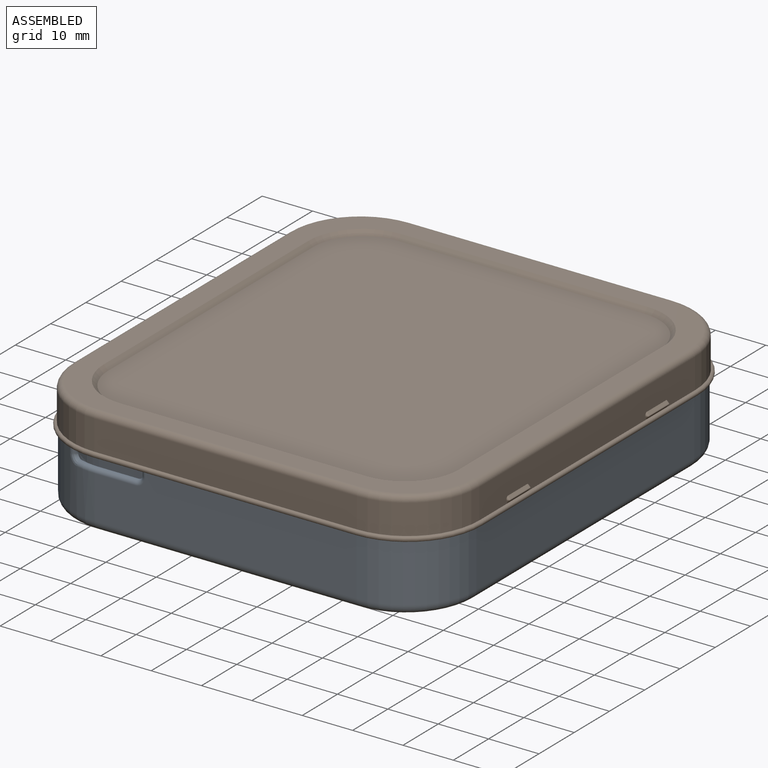
[diagram: assembled view]
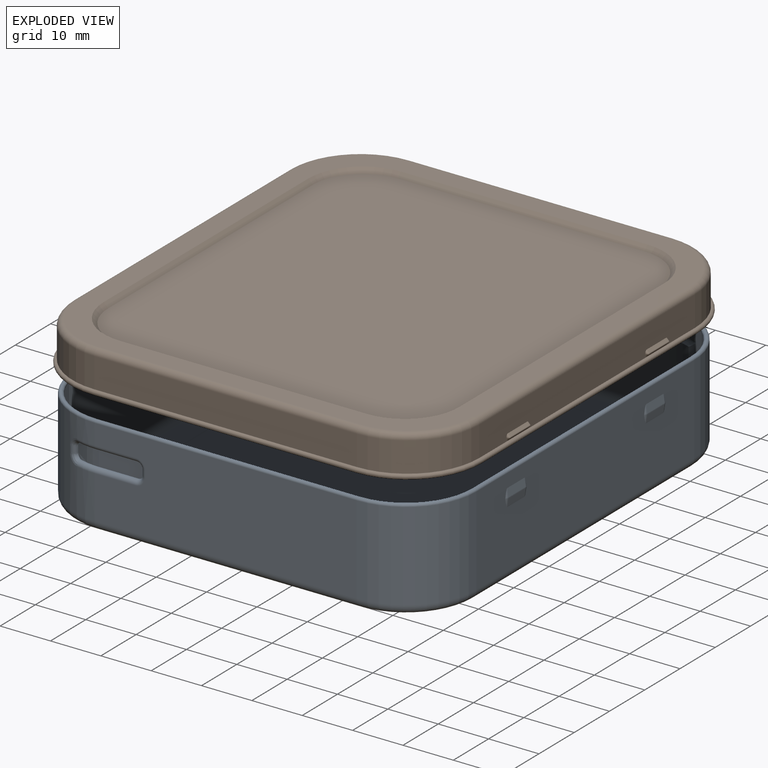
[diagram: exploded view]
GUIDED TOUR — MATED ASSEMBLY WITH SUBASSEMBLIES (Onshape document b208c17fce74fa3fee5528a0, AutoMate assembly b208c17fce74fa3fee5528a0_e286bc512f79c930f205ee28_87a1b910d53299bb61f0822f_default)

This assembly has 4 component occurrences arranged in 2 top-level units: 1 individual components plus 1 subassembly (S0). The tour has two levels: first the top level, where each subassembly is treated as one rigid unit; then each subassembly is toured internally in its own section (nesting deeper than one subassembly level is flattened into its subassembly's section).

Components are labeled P0..P3 across the whole record; subassembly units are labeled S0..S0. A mate is a constraint between two units; its type names the relative motion it leaves free:
  FASTENED — locks the two components together rigidly (no relative motion).
Axis/direction vectors are unit vectors and 'through' points are millimeter coordinates, both in the assembly's world frame.

TOP-LEVEL MATES (between units; each subassembly's internal mates are listed in its own section)
  1. FASTENED "Fastened 1": S0 <-> P0, direction (0.000, 0.000, -1.000) through (0.19, 0.00, 10.28) mm

TOP-LEVEL ASSEMBLY ORDER
  1. P0 — the base component [order heuristic]
  2. S0 [order heuristic]
Order-tag legend:
  [order heuristic] — this assembly is geometrically interlocked (no collision-free removal order exists), so components are listed in mate-graph order; insertion feasibility is not verified.

Of the 4 component occurrences, 1 carries the full construction recipe — the FeatureScript program that regenerates the part's solid from scratch; the rest are supplied as boundary geometry only. Each toured unit is shown spotlighted twice — assembled, then exploded with a leader line back to its socket (green = recipe-attached component, orange = geometry-only, blue = subassembly unit; the rest desaturated gray).
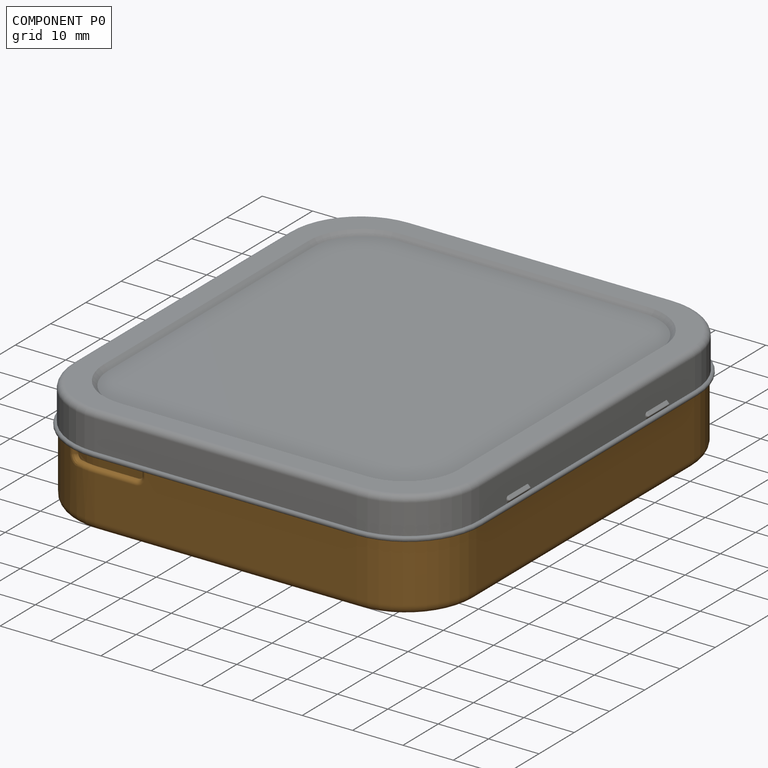
[diagram: component P0 — assembled]
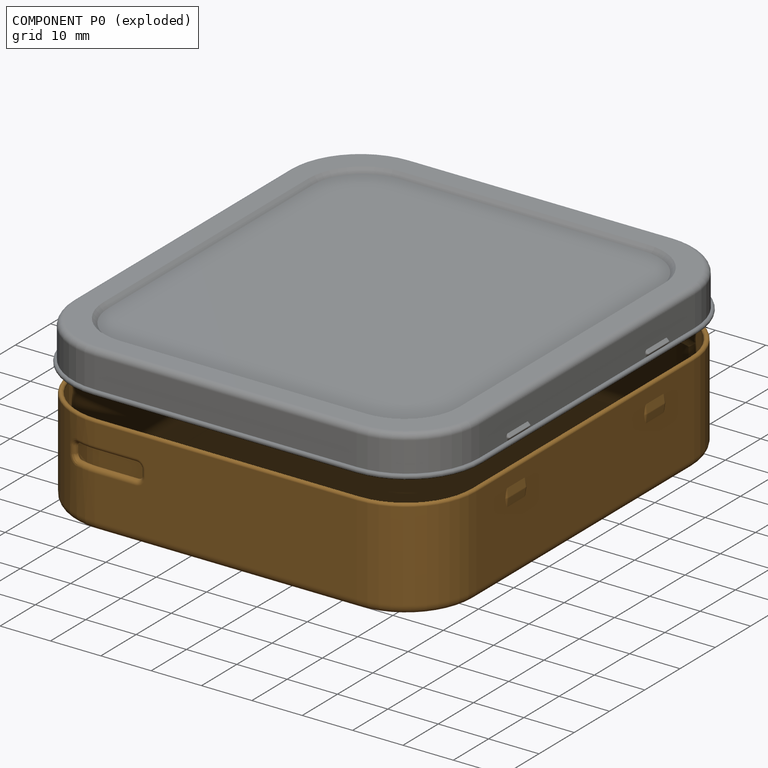
[diagram: component P0 — exploded]
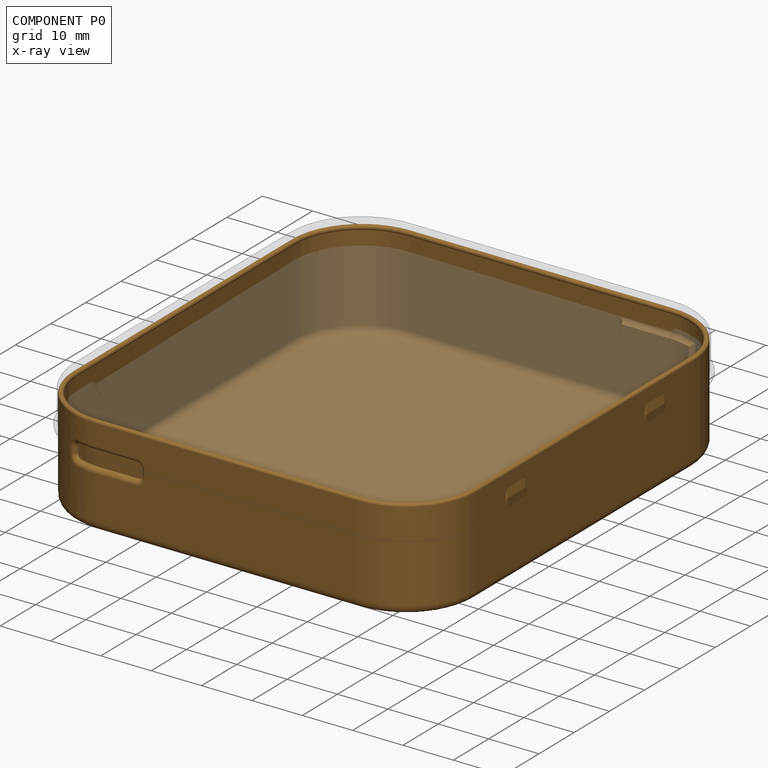
[diagram: component P0 — x-ray view]
COMPONENT P0 — geometry summary (no construction recipe available for this part):
  bounding box: 92.0 x 82.3 x 20.1 mm
  B-rep topology: 1 solid, 168 faces, 778 edges
  volume: 4303 mm^3 (3% of its bounding box)
  symmetry: 2-fold rotationally symmetric about the z axis
Held by: FASTENED mate "Fastened 1" to P1.
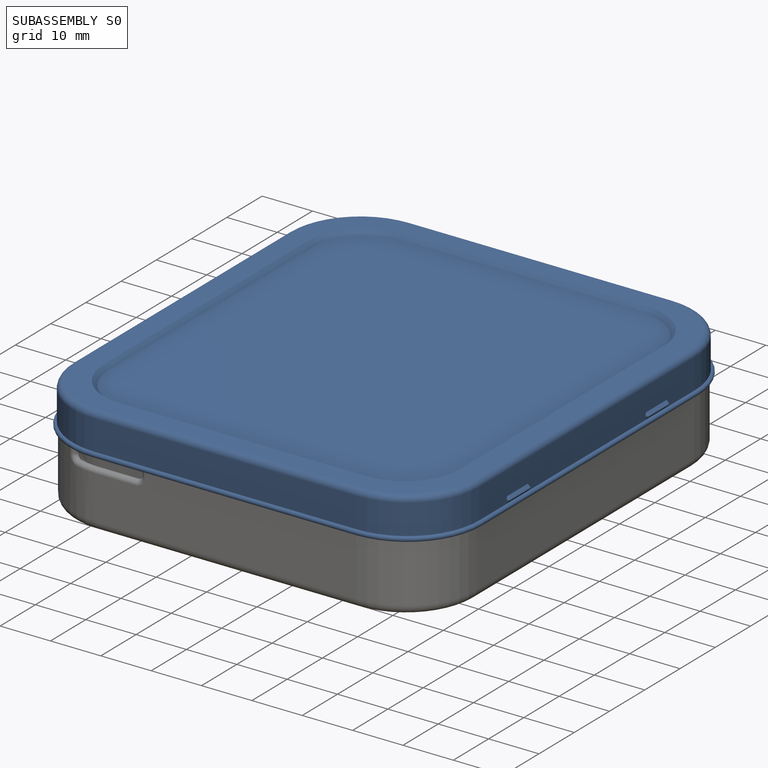
[diagram: subassembly S0 — assembled]
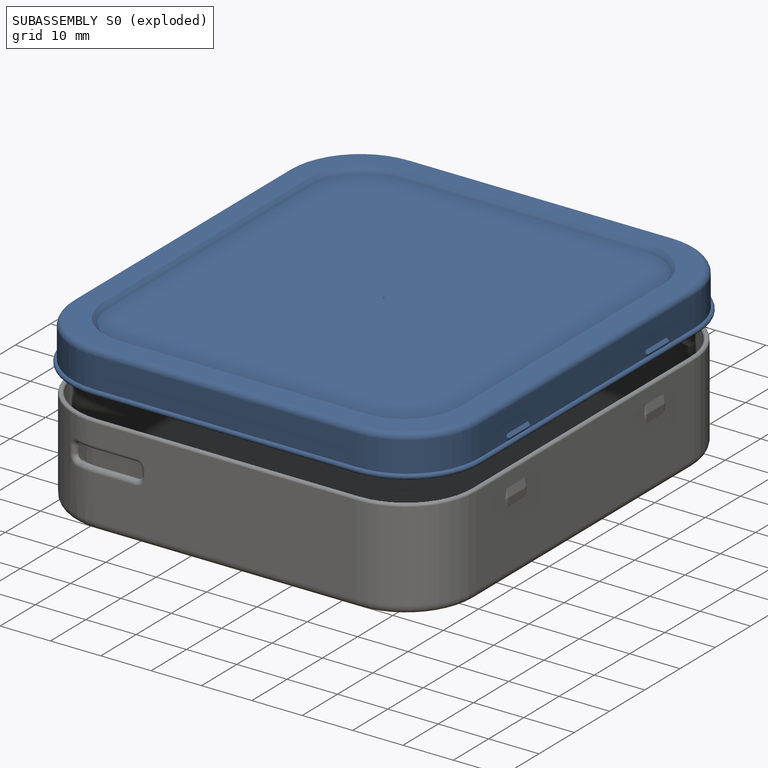
[diagram: subassembly S0 — exploded]
SUBASSEMBLY S0 — 3 components (P1, P2, P3), of which 1 recipe-attached; toured below.
Held by: FASTENED mate "Fastened 1" to P0.
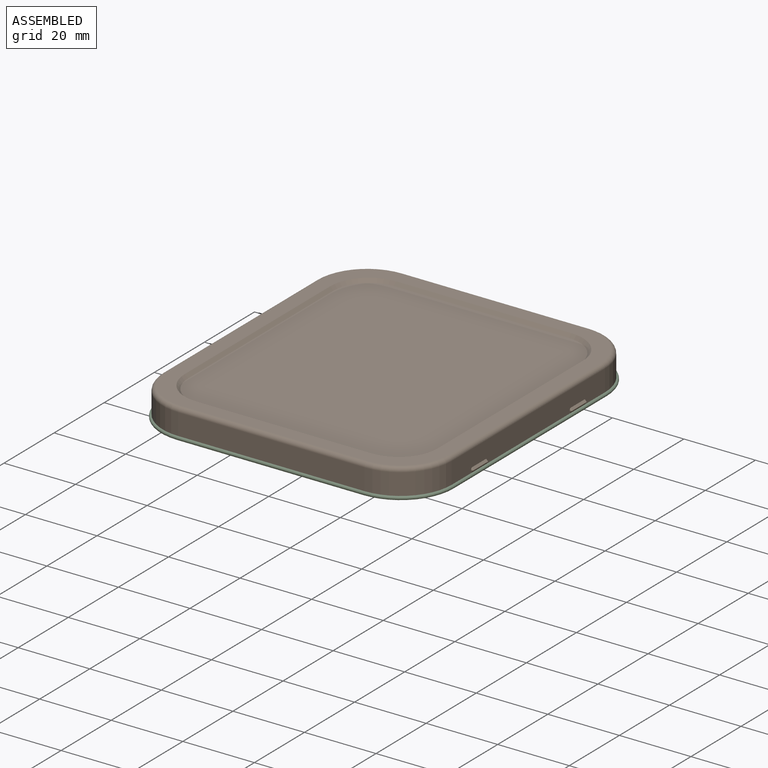
[diagram: subassembly S0 — assembled view]
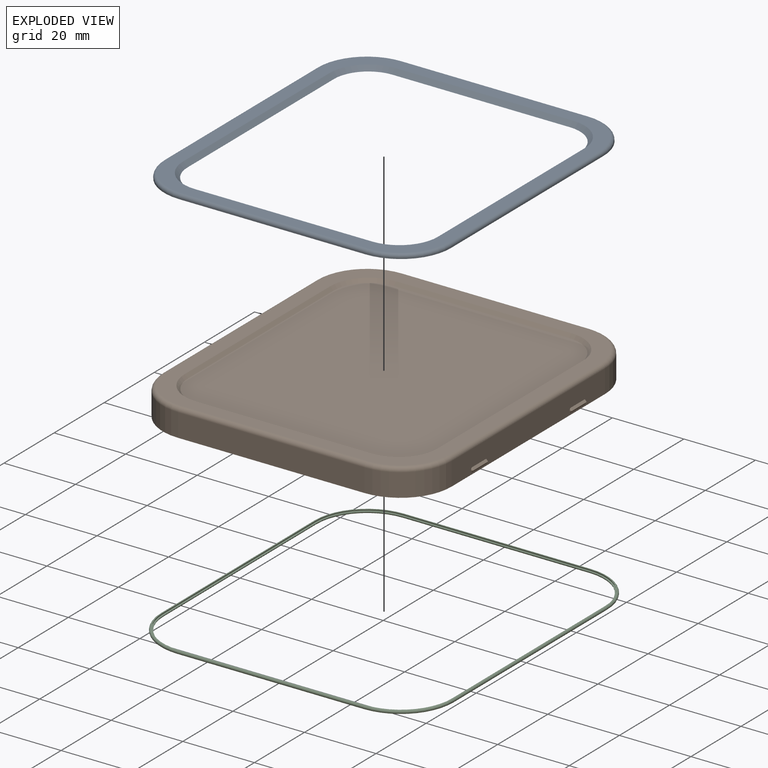
[diagram: subassembly S0 — exploded view]
SUBASSEMBLY S0 TOUR — 3 components, shown here in isolation at its own camera.

INTERNAL MATES
  1. FASTENED "Fastened 1": P1 <-> P2, direction (0.000, 0.000, 1.000) through (-38.98, 0.00, 11.17) mm
  2. FASTENED "Fastened 1": P1 <-> P2, direction (0.000, 0.000, 1.000) through (-38.98, 0.00, 11.17) mm
  3. FASTENED "Fastened 2": P3 <-> P2, direction (0.000, 0.000, 1.000) through (26.26, 30.61, 3.87) mm

ASSEMBLY ORDER (within the subassembly)
  1. P2 — the base component [order verified]
  2. P1 [order verified]
  3. P3 [order verified]
(P1 verified with a relaxed clearance tolerance: the source model stores slight part interference there.)
Order-tag legend:
  [order verified] — this step's position reverses a verified removal order: the component was checked to insert without passing through the ones already placed.
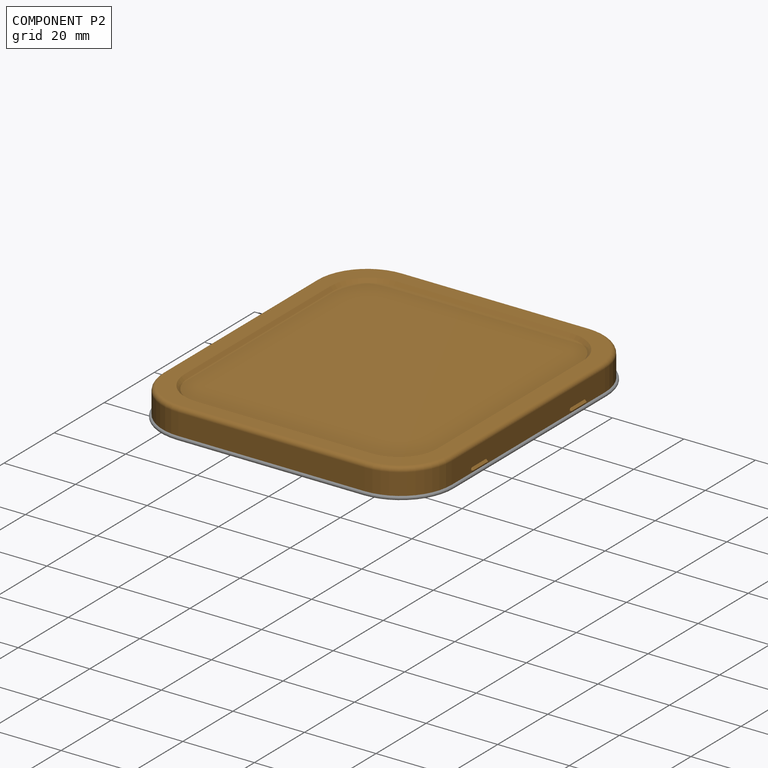
[diagram: component P2 — assembled]
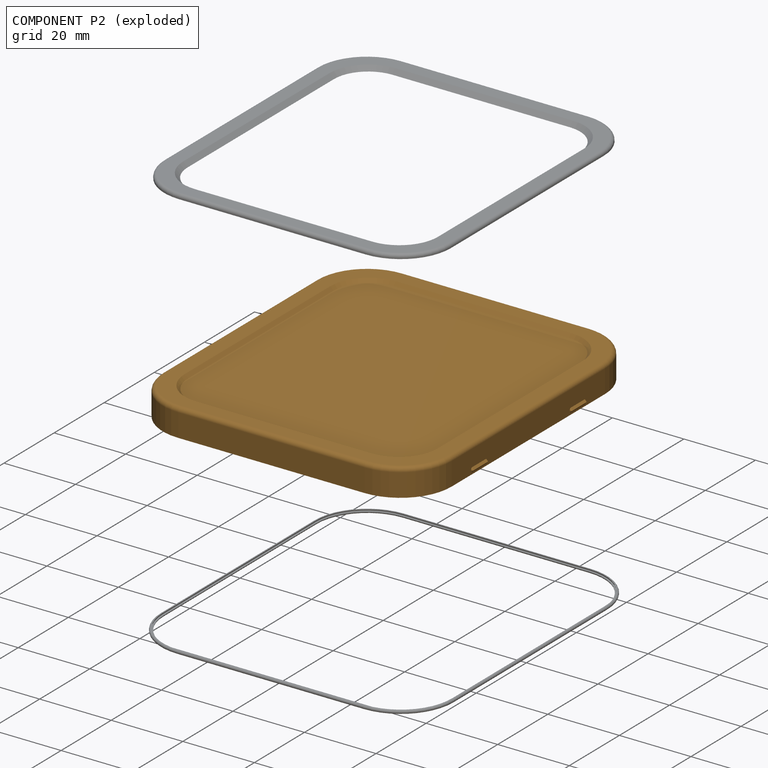
[diagram: component P2 — exploded]
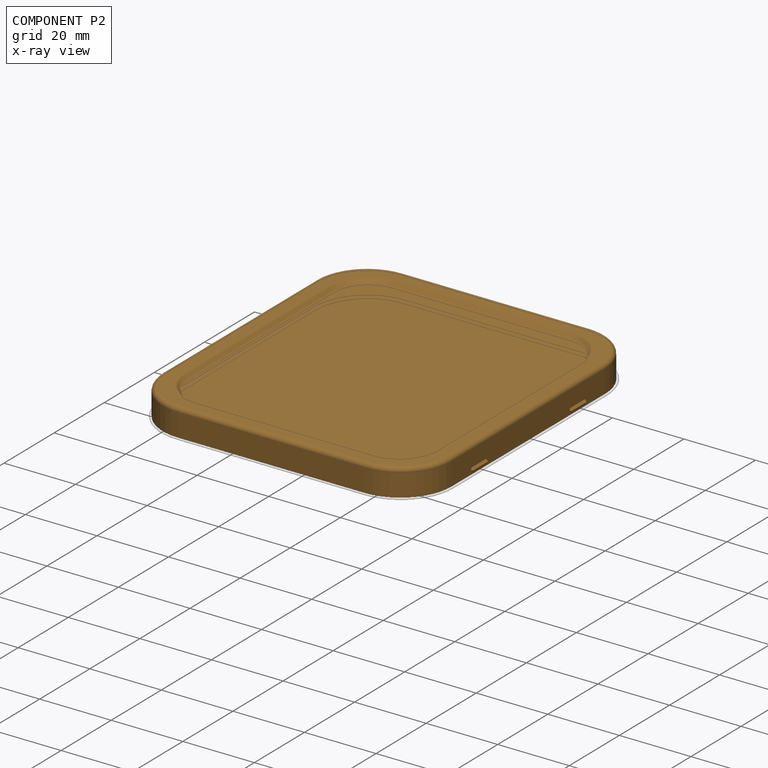
[diagram: component P2 — x-ray view]
COMPONENT P2 — geometry summary (no construction recipe available for this part):
  bounding box: 92.1 x 83.1 x 7.6 mm
  B-rep topology: 1 solid, 113 faces, 528 edges
  volume: 2969 mm^3 (5% of its bounding box)
  symmetry: 2-fold rotationally symmetric about the z axis; mirror-symmetric across its x mid-plane, y mid-plane
Held by: FASTENED mate "Fastened 1" to P1; FASTENED mate "Fastened 1" to P1; FASTENED mate "Fastened 2" to P3.
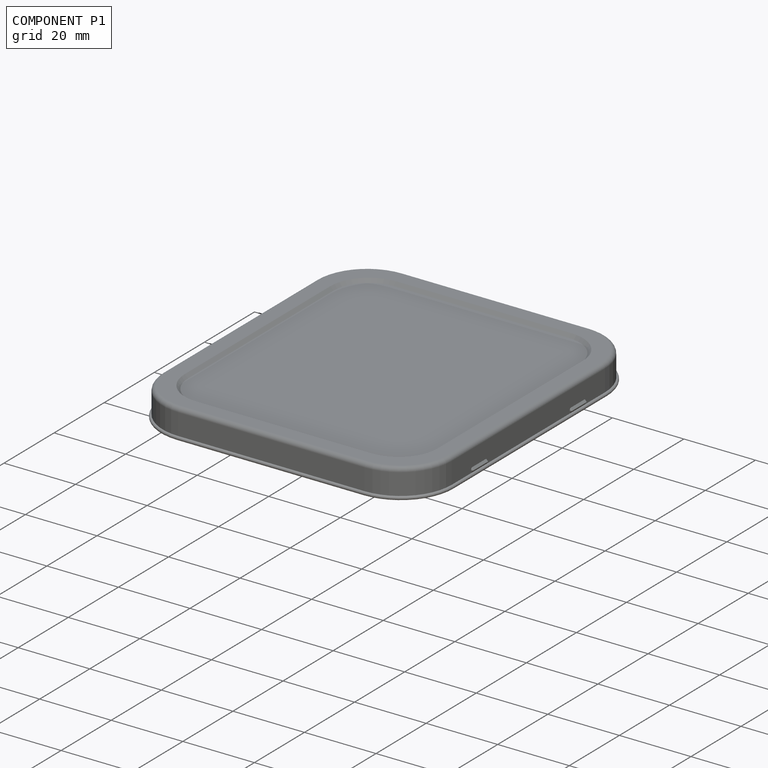
[diagram: component P1 — assembled]
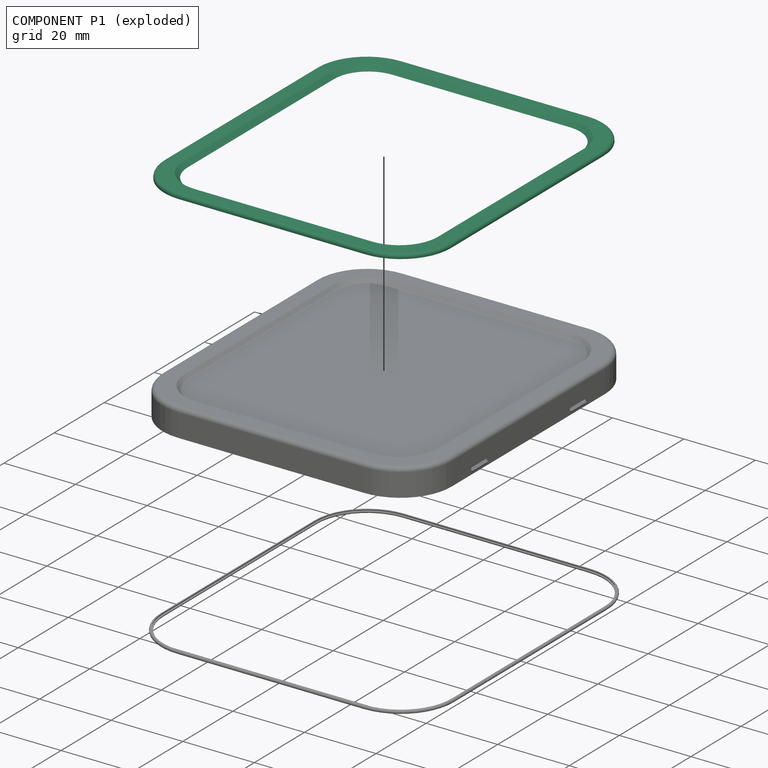
[diagram: component P1 — exploded]
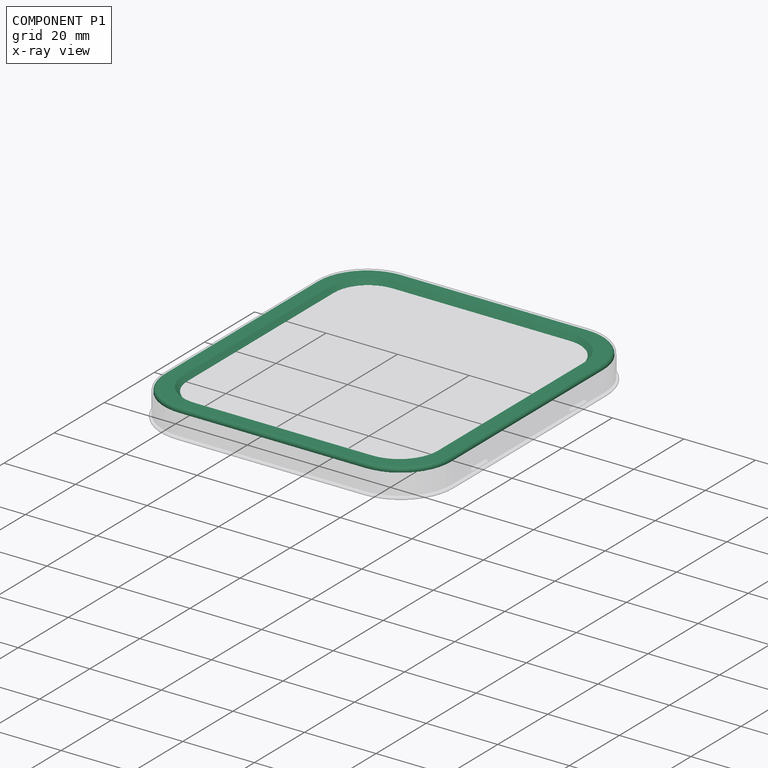
[diagram: component P1 — x-ray view]
COMPONENT P1 — recipe-attached (CADFS 00549692, mesh-verified: the recipe's output STEP matches this component's geometry to below the mesh-comparison resolution (tessellation chordal tolerance ~0.179 mm)).
Held by: FASTENED mate "Fastened 1" to P2; FASTENED mate "Fastened 1" to P2.
Construction recipe (FeatureScript — the CAD program that rebuilds this solid; sketch coordinates are in the units given by the * unit suffixes, e.g. mm):

FeatureScript 1511;
import(path : "onshape/std/geometry.fs", version : "1511.0");
import(path : "onshape/std/common.fs", version : "1511.0");
const mm = millimeter;
const VERTEX = EntityType.VERTEX;
const EDGE = EntityType.EDGE;
const FACE = EntityType.FACE;
const BODY = EntityType.BODY;
function v(x, y){return vector(x, y);}
function OD(order){return orderDisambiguation(order);}
function OSD(set){return originalSetDisambiguation(set);}
function TD(topology){return topologyDisambiguation(topology);}
function TDD(query){return trueDependencyDisambiguation(query);}
function sQuery(a, b, c) {return sketchEntityQuery(a, b, c);}

annotation { "Feature Type Name" : "Feature", "Feature Type Description" : "" }
export const myFeature = defineFeature(function(context is Context, id is Id, definition is map)
    precondition{}
    {
        {
            var Q0;
            Q0=qCreatedBy(makeId("Top.planeOp"),FACE);
            var sketch = newSketch(context, id + "F0", { "sketchPlane" : qUnion([Q0])});
            skLineSegment(sketch, "E0.bottom", {"start": v(26.06, 44.45) * mm, "end": v(-26.06, 44.45) * mm});
            skLineSegment(sketch, "E0.top", {"start": v(26.06, -44.45) * mm, "end": v(-26.06, -44.45) * mm});
            skLineSegment(sketch, "E0.left", {"start": v(40.04, 30.47) * mm, "end": v(40.04, -30.47) * mm});
            skLineSegment(sketch, "E0.right", {"start": v(-40.04, 30.47) * mm, "end": v(-40.04, -30.47) * mm});
            skPoint(sketch, "E0.middle", {"position": v(0, 0) * mm});
            skPoint(sketch, "E1.visualSharp", {"position": v(-40.04, 44.45) * mm});
            skArc(sketch, "E1.filletArc", {"start": v(-26.06, 44.45) * mm, "mid": v(-35.95, 40.35) * mm, "end": v(-40.04, 30.47) * mm});
            skPoint(sketch, "E2.visualSharp", {"position": v(40.04, 44.45) * mm});
            skArc(sketch, "E2.filletArc", {"start": v(40.04, 30.47) * mm, "mid": v(35.95, 40.35) * mm, "end": v(26.06, 44.45) * mm});
            skPoint(sketch, "E3.visualSharp", {"position": v(40.04, -44.45) * mm});
            skArc(sketch, "E3.filletArc", {"start": v(26.06, -44.45) * mm, "mid": v(35.95, -40.35) * mm, "end": v(40.04, -30.47) * mm});
            skPoint(sketch, "E4.visualSharp", {"position": v(-40.04, -44.45) * mm});
            skArc(sketch, "E4.filletArc", {"start": v(-40.04, -30.47) * mm, "mid": v(-35.95, -40.35) * mm, "end": v(-26.06, -44.45) * mm});
            skSolve(sketch);
        }
        {
            var Q0;
            Q0=qCreatedBy(makeId("Top.planeOp"),FACE);
            var sketch = newSketch(context, id + "F1", { "sketchPlane" : qUnion([Q0])});
            skLineSegment(sketch, "E5.bottom", {"start": v(24.8, 38.74) * mm, "end": v(-24.8, 38.74) * mm});
            skLineSegment(sketch, "E5.top", {"start": v(24.8, -38.74) * mm, "end": v(-24.8, -38.74) * mm});
            skLineSegment(sketch, "E5.left", {"start": v(34.33, 29.21) * mm, "end": v(34.33, -29.21) * mm});
            skLineSegment(sketch, "E5.right", {"start": v(-34.33, 29.21) * mm, "end": v(-34.33, -29.21) * mm});
            skPoint(sketch, "E5.middle", {"position": v(0, 0) * mm});
            skPoint(sketch, "E6.visualSharp", {"position": v(-34.33, 38.74) * mm});
            skArc(sketch, "E6.filletArc", {"start": v(-24.8, 38.74) * mm, "mid": v(-31.54, 35.95) * mm, "end": v(-34.33, 29.21) * mm});
            skPoint(sketch, "E7.visualSharp", {"position": v(34.33, 38.74) * mm});
            skArc(sketch, "E7.filletArc", {"start": v(34.33, 29.21) * mm, "mid": v(31.54, 35.95) * mm, "end": v(24.8, 38.74) * mm});
            skPoint(sketch, "E8.visualSharp", {"position": v(34.33, -38.74) * mm});
            skArc(sketch, "E8.filletArc", {"start": v(24.8, -38.74) * mm, "mid": v(31.54, -35.95) * mm, "end": v(34.33, -29.21) * mm});
            skPoint(sketch, "E9.visualSharp", {"position": v(-34.33, -38.74) * mm});
            skArc(sketch, "E9.filletArc", {"start": v(-34.33, -29.21) * mm, "mid": v(-31.54, -35.95) * mm, "end": v(-24.8, -38.74) * mm});
            skSolve(sketch);
        }
        {
            var Q0;
            Q0=makeQuery(id+"F0.imprint","IMPRINT",FACE,{"disambiguationData":[TD([[makeQuery(id+"F0.imprint","IMPRINT",EDGE,{"derivedFrom":sQuery(id+"F0.wireOp",EDGE,"E0.bottom")}),1.0]])]});
            extrude(context, id + "F2", {"entities" : qUnion([Q0]), "depth" : 1.2 * mm, "offsetDistance" : 25.4 * mm});
        }
        {
            var Q0;
            Q0 = qSketchRegion(id + "F1", true);
            var Q1;
            Q1=makeQuery(id+"F2.opExtrude","CAP_FACE",FACE,{"disambiguationData":[OSD([sQuery(id+"F0.wireOp",EDGE,"E0.bottom"),sQuery(id+"F0.wireOp",EDGE,"E0.top"),sQuery(id+"F0.wireOp",EDGE,"E0.left"),sQuery(id+"F0.wireOp",EDGE,"E0.right"),sQuery(id+"F0.wireOp",EDGE,"E1.filletArc"),sQuery(id+"F0.wireOp",EDGE,"E2.filletArc"),sQuery(id+"F0.wireOp",EDGE,"E3.filletArc"),sQuery(id+"F0.wireOp",EDGE,"E4.filletArc")])],"isStart":false});
            extrude(context, id + "F3", {"entities" : qUnion([Q0, Q1]), "operationType" : NewBodyOperationType.REMOVE, "endBound" : BoundingType.THROUGH_ALL, "depth" : 25.4 * mm, "offsetDistance" : 25.4 * mm});
        }
        {
            var Q0;
            Q0=makeQuery(id+"F2.opExtrude","CAP_EDGE",EDGE,{"disambiguationData":[OSD([sQuery(id+"F0.wireOp",EDGE,"E0.right")])],"isStart":false});
            fillet(context, id + "F4", {"entities" : qUnion([Q0]), "radius" : 0.88 * mm, "tangentPropagation" : true, "allowEdgeOverflow" : false});
        }
        {
            var Q0;
            {var subQ0=sQuery(id+"F0.wireOp",EDGE,"E4.filletArc");var subQ1=sQuery(id+"F0.wireOp",EDGE,"E3.filletArc");var subQ2=sQuery(id+"F0.wireOp",EDGE,"E2.filletArc");var subQ3=sQuery(id+"F0.wireOp",EDGE,"E1.filletArc");var subQ4=sQuery(id+"F0.wireOp",EDGE,"E0.right");var subQ5=sQuery(id+"F0.wireOp",EDGE,"E0.left");var subQ6=sQuery(id+"F0.wireOp",EDGE,"E0.top");var subQ7=sQuery(id+"F0.wireOp",EDGE,"E0.bottom");Q0=makeQuery(id+"F3.boolean.opBoolean","INTERSECT",EDGE,{"derivedFrom":[makeQuery(id+"F2.opExtrude","CAP_FACE",FACE,{"disambiguationData":[OSD([subQ7,subQ6,subQ5,subQ4,subQ3,subQ2,subQ1,subQ0])],"isStart":false}),makeQuery(id+"F3.opExtrude","SWEPT_FACE",FACE,{"disambiguationData":[OSD([sQuery(id+"F1.wireOp",EDGE,"E5.right")])]}),makeQuery(id+"F3.opExtrude","CAP_FACE",FACE,{"disambiguationData":[OSD([subQ7,subQ6,subQ5,subQ4,subQ3,subQ2,subQ1,subQ0])],"isStart":true})]});}
            chamfer(context, id + "F5", {"entities" : qUnion([Q0]), "width" : 1.27 * mm, "tangentPropagation" : true});
        }
    });
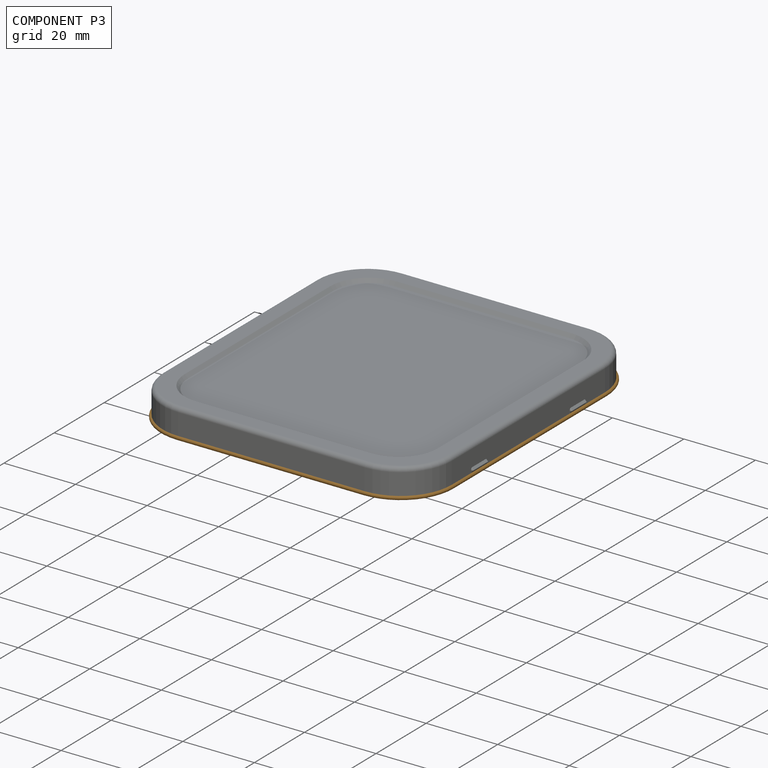
[diagram: component P3 — assembled]
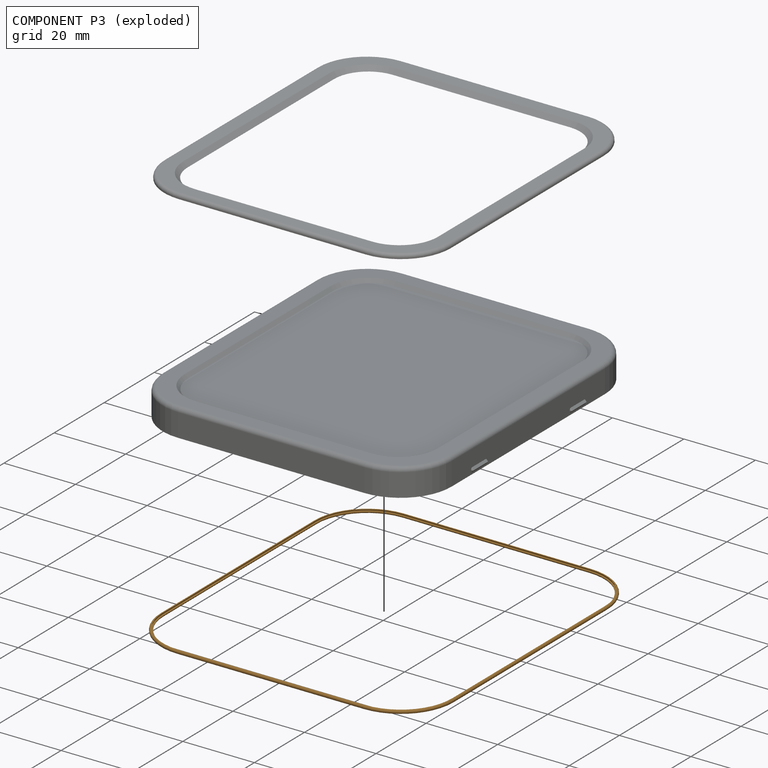
[diagram: component P3 — exploded]
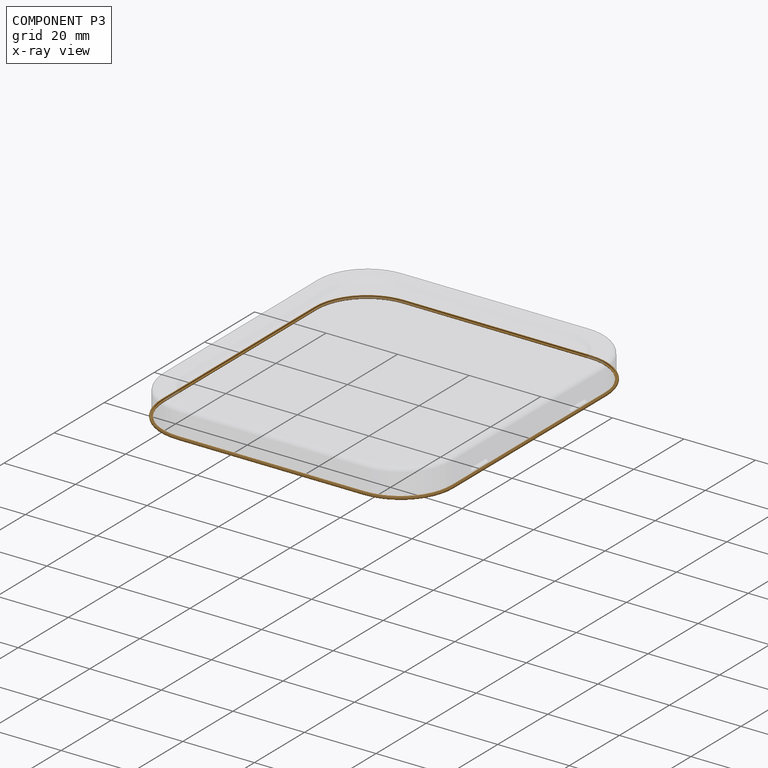
[diagram: component P3 — x-ray view]
COMPONENT P3 — geometry summary (no construction recipe available for this part):
  bounding box: 93.4 x 84.5 x 1.0 mm
  B-rep topology: 1 solid, 25 faces, 112 edges
  volume: 164 mm^3 (2% of its bounding box)
  symmetry: 2-fold rotationally symmetric about the x axis; 2-fold rotationally symmetric about the y axis; 2-fold rotationally symmetric about the z axis; mirror-symmetric across its x mid-plane, y mid-plane, z mid-plane
Held by: FASTENED mate "Fastened 2" to P2.
PROVENANCE & LICENSES
Assembly (occurrences, transforms, mates, per-part STEP geometry): AutoMate dataset, Zenodo record 7776208, CC0.
Construction recipes: CADFS (HuggingFace VladPyatov/CADFS, CC-BY-4.0, layered over the ABC dataset), FeatureScript reconstruction programs keyed by ABC model id.
Join: ABC meta listings map ABC model id -> Onshape documentId; within a shared document, parts are matched by geometric signature (bounding-box dims + volume at 0.1% relative tolerance, exact B-rep face/solid counts).
Verification: 1 of this assembly's 4 components carries a recipe attachment, and every attachment is mesh-verified: the CADFS STEP and the AutoMate member STEP were compared as meshes in their shared local frame (symmetric sampled-point-to-mesh distance); worst across the 1 attachment: below the mesh-comparison resolution (tessellation chordal tolerance ~0.179 mm) on a 120 mm part.
Renders: orthographic iso camera (az 35 / el 25); the floor grid conveys scale (grid pitch printed in each image; no ruler). In the exploded view each component is displaced by its stored offset vector: the offsets alone carry the explosion direction (mate normal/axis signs are not orientation cues and do not encode it), and separation distances are assigned per mate-chain, not proportionally to assembly-order depth.
